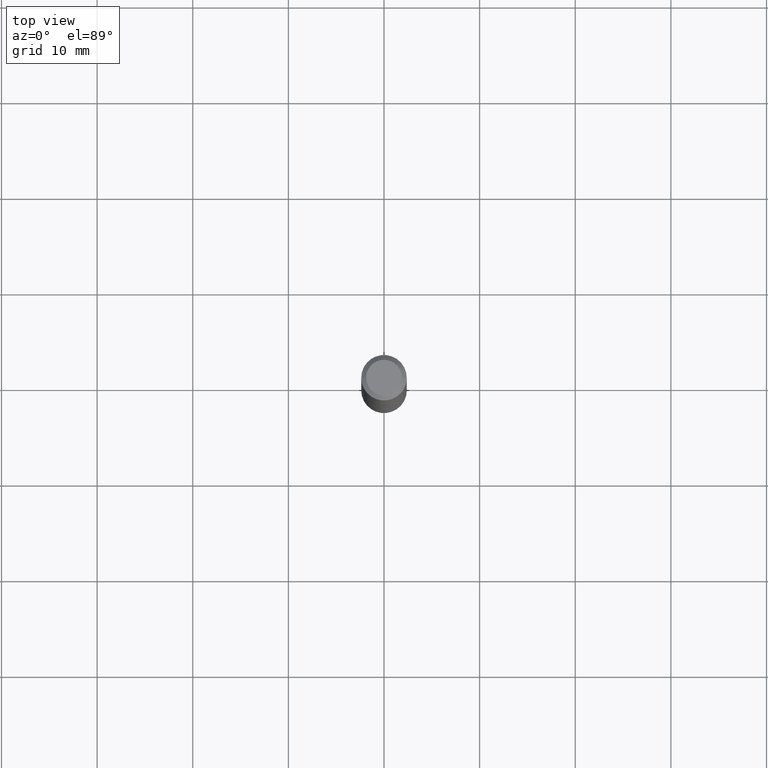
[diagram: clean part render]
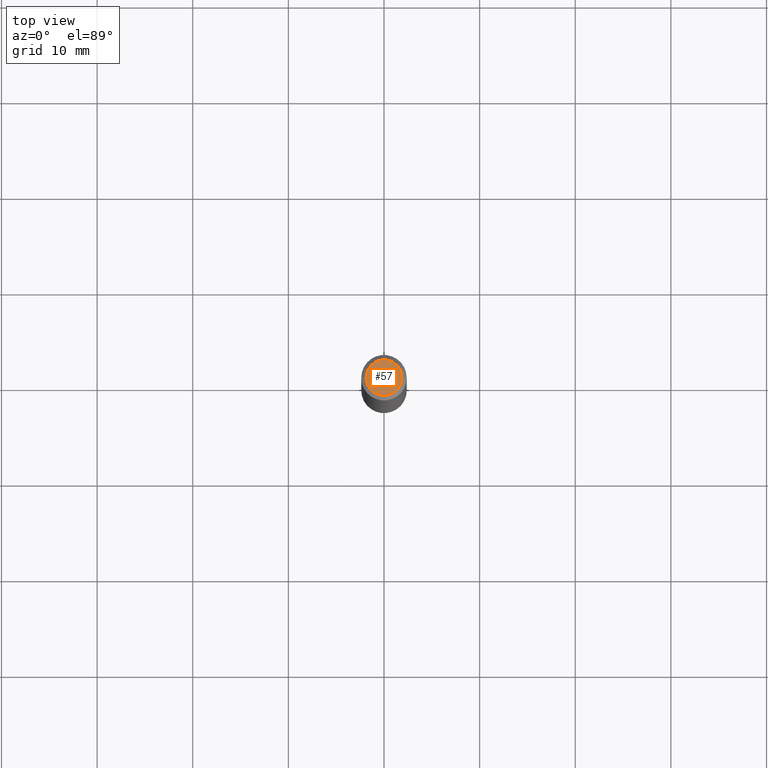
[diagram: same view with one face highlighted and labeled with its STEP entity id]
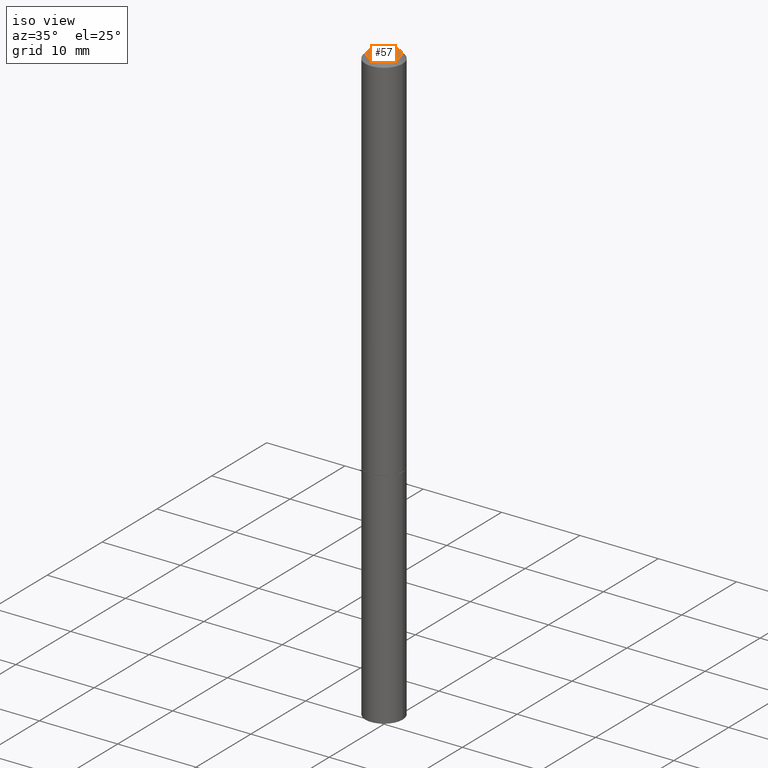
[diagram: same view with one face highlighted and labeled with its STEP entity id]
A machine part, top view. The second image highlights one B-rep face of the part: STEP entity #57.
A second angle (iso view) of the same face is appended — the face is thin or edge-on in the first view.
In plain terms, the highlighted planar face has unit normal (0, -0, -1).
Its self-contained STEP definition (entity closure, byte-faithful):
#2 = AXIS2_PLACEMENT_3D ( 'NONE', #209, #179, #328 ) ;
#37 = CIRCLE ( 'NONE', #272, 0.07374999999999982958 ) ;
#56 = DIRECTION ( 'NONE',  ( 1.000000000000000000, -6.982962677686266711E-15, 4.875869617646596737E-29 ) ) ;
#57 = ADVANCED_FACE ( 'NONE', ( #276 ), #185, .F. ) ;
#61 = CARTESIAN_POINT ( 'NONE',  ( -1.043851414335219820E-46, 1.490343170380447200E-32, 4.268512490100411279E-18 ) ) ;
#99 = VERTEX_POINT ( 'NONE', #210 ) ;
#105 = ORIENTED_EDGE ( 'NONE', *, *, #192, .T. ) ;
#125 = EDGE_LOOP ( 'NONE', ( #105, #132 ) ) ;
#132 = ORIENTED_EDGE ( 'NONE', *, *, #274, .T. ) ;
#164 = DIRECTION ( 'NONE',  ( -2.445468806185136597E-29, 3.491481338843145583E-15, 1.000000000000000000 ) ) ;
#179 = DIRECTION ( 'NONE',  ( 2.438088387897960049E-29, -3.491481338843145188E-15, -1.000000000000000000 ) ) ;
#185 = PLANE ( 'NONE',  #2 ) ;
#192 = EDGE_CURVE ( 'NONE', #99, #350, #222, .T. ) ;
#209 = CARTESIAN_POINT ( 'NONE',  ( 5.149934974793609077E-16, 0.07374999999999982958, -2.553624924946311773E-16 ) ) ;
#210 = CARTESIAN_POINT ( 'NONE',  ( -0.07374999999999982958, 5.499083108677920638E-16, 4.268512490096688071E-18 ) ) ;
#222 = CIRCLE ( 'NONE', #229, 0.07374999999999982958 ) ;
#229 = AXIS2_PLACEMENT_3D ( 'NONE', #321, #363, #56 ) ;
#255 = DIRECTION ( 'NONE',  ( 1.000000000000000000, -6.982962677686266711E-15, 4.875869617646596737E-29 ) ) ;
#272 = AXIS2_PLACEMENT_3D ( 'NONE', #61, #164, #255 ) ;
#274 = EDGE_CURVE ( 'NONE', #350, #99, #37, .T. ) ;
#276 = FACE_OUTER_BOUND ( 'NONE', #125, .T. ) ;
#321 = CARTESIAN_POINT ( 'NONE',  ( -1.043851414335219820E-46, 1.490343170380447200E-32, 4.268512490100411279E-18 ) ) ;
#328 = DIRECTION ( 'NONE',  ( -1.000000000000000000, 6.982962677686265922E-15, -4.876176775795935793E-29 ) ) ;
#341 = CARTESIAN_POINT ( 'NONE',  ( 0.07374999999999982958, -6.094815207017959226E-16, 4.268512490104342487E-18 ) ) ;
#350 = VERTEX_POINT ( 'NONE', #341 ) ;
#363 = DIRECTION ( 'NONE',  ( -2.445468806185136597E-29, 3.491481338843145583E-15, 1.000000000000000000 ) ) ;